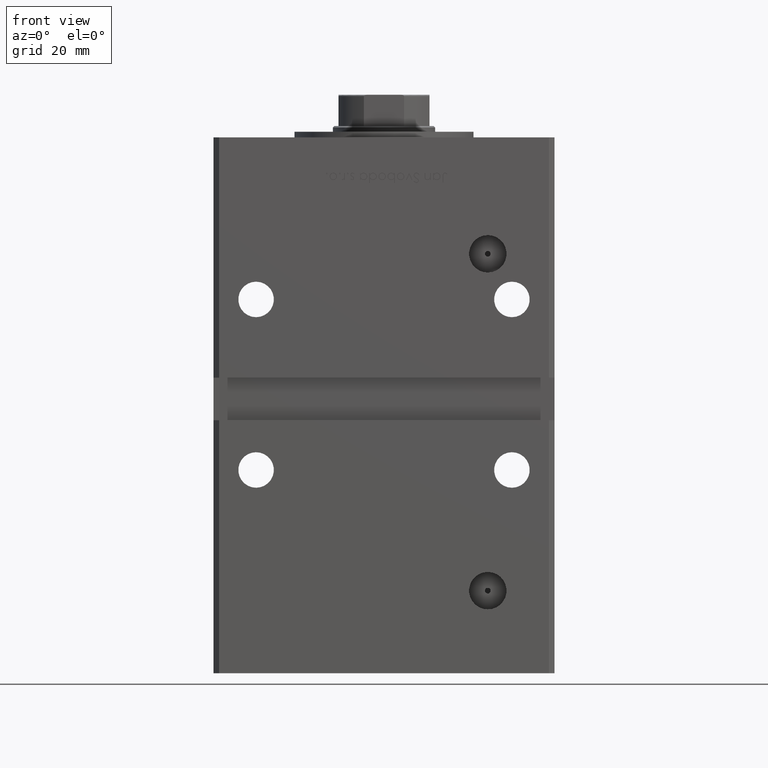
[diagram: clean part render]
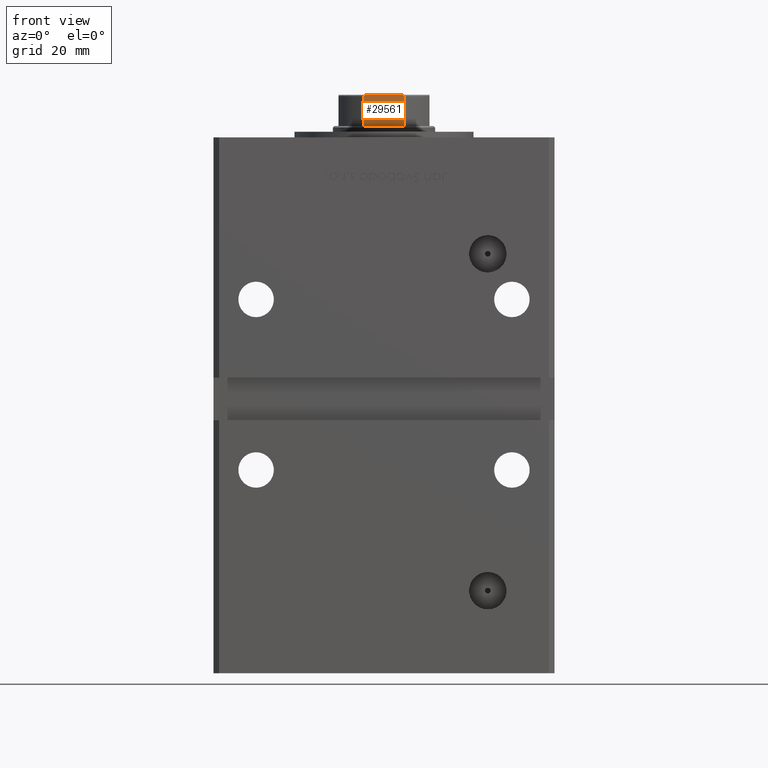
[diagram: same view with one face highlighted and labeled with its STEP entity id]
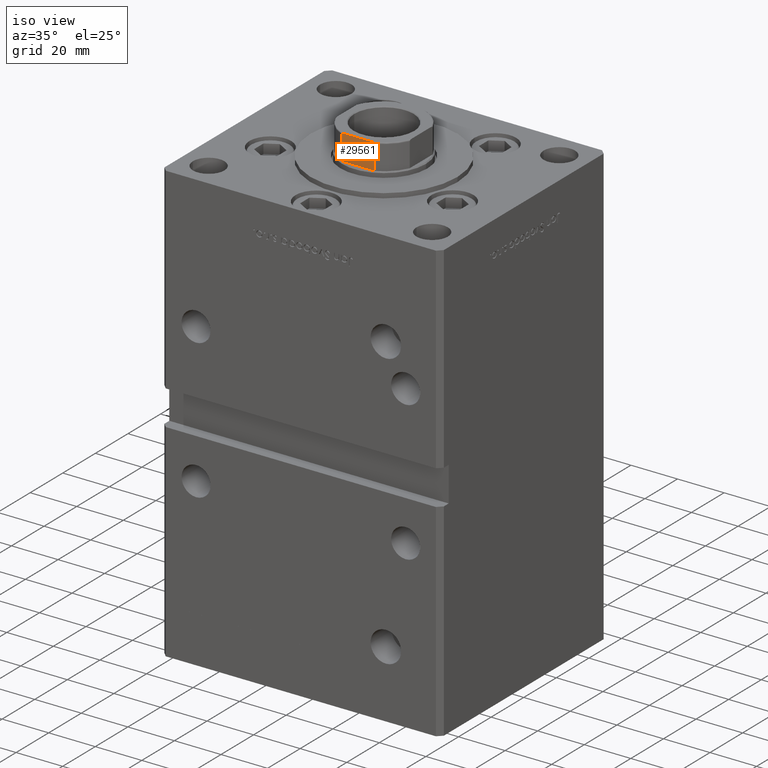
[diagram: same view with one face highlighted and labeled with its STEP entity id]
A machine part, front view. The second image highlights one B-rep face of the part: STEP entity #29561.
A second angle (iso view) of the same face is appended — the face is thin or edge-on in the first view.
In plain terms, the highlighted planar face has unit normal (-0, 1, 0).
Its self-contained STEP definition (entity closure, byte-faithful):
#1341 = B_SPLINE_CURVE_WITH_KNOTS ( 'NONE', 3,
 ( #15172, #10882, #32038, #35796, #27224, #19445, #31515, #11154, #35264, #47870 ),
 .UNSPECIFIED., .F., .F.,
 ( 4, 2, 2, 2, 4 ),
 ( 0.000000000000000000, 0.0001928955851489656066, 0.0003857911702979312132, 0.0007715823405958216604, 0.001543164681191583039 ),
 .UNSPECIFIED. ) ;
#2238 = CARTESIAN_POINT ( 'NONE',  ( -7.088723439378916247, -16.00000000000000000, 158.2500000000000284 ) ) ;
#3283 = CARTESIAN_POINT ( 'NONE',  ( -15.99999999999999645, -16.00000000000000355, 169.2500000000000000 ) ) ;
#4080 = DIRECTION ( 'NONE',  ( -1.084202172485504557E-16, 1.000000000000000000, 0.000000000000000000 ) ) ;
#5608 = CARTESIAN_POINT ( 'NONE',  ( -7.088723439378916247, -16.00000000000000000, 168.7500000000000000 ) ) ;
#7127 = CARTESIAN_POINT ( 'NONE',  ( 7.088723439378916247, -16.00000000000000000, 168.7500000000000000 ) ) ;
#8806 = DIRECTION ( 'NONE',  ( 1.000000000000000000, 1.084202172485504434E-16, 0.000000000000000000 ) ) ;
#9757 = CARTESIAN_POINT ( 'NONE',  ( 7.088723439378916247, -16.00000000000000000, -0.001000000000001000089 ) ) ;
#10184 = EDGE_CURVE ( 'NONE', #50161, #20619, #30895, .T. ) ;
#10443 = ORIENTED_EDGE ( 'NONE', *, *, #36633, .F. ) ;
#10525 = DIRECTION ( 'NONE',  ( -0.000000000000000000, -0.000000000000000000, 1.000000000000000000 ) ) ;
#10664 = ORIENTED_EDGE ( 'NONE', *, *, #35216, .T. ) ;
#10882 = CARTESIAN_POINT ( 'NONE',  ( 7.088723439378916247, -16.00000000000000000, 168.8153596029795551 ) ) ;
#11154 = CARTESIAN_POINT ( 'NONE',  ( 6.252433022027807930, -16.00000000000000000, 169.2306157152108312 ) ) ;
#11208 = CARTESIAN_POINT ( 'NONE',  ( -7.088723439378916247, -16.00000000000000000, 168.7500000000000000 ) ) ;
#12003 = CARTESIAN_POINT ( 'NONE',  ( -7.055793701721071010, -16.00000000000000000, 168.8756279161197540 ) ) ;
#12266 = CARTESIAN_POINT ( 'NONE',  ( -6.251780714621276935, -16.00000000000000355, 169.2305079891187347 ) ) ;
#13828 = DIRECTION ( 'NONE',  ( 1.000000000000000000, 1.084202172485504434E-16, 0.000000000000000000 ) ) ;
#15172 = CARTESIAN_POINT ( 'NONE',  ( 7.088723439378916247, -16.00000000000000000, 168.7500000000000000 ) ) ;
#15947 = VERTEX_POINT ( 'NONE', #41210 ) ;
#16023 = CARTESIAN_POINT ( 'NONE',  ( -6.967626683430007795, -16.00000000000000355, 168.9712986014228591 ) ) ;
#16138 = PLANE ( 'NONE',  #37945 ) ;
#16290 = CARTESIAN_POINT ( 'NONE',  ( -7.088723439378911806, -16.00000000000000000, 168.8155697653146206 ) ) ;
#16294 = EDGE_CURVE ( 'NONE', #17472, #20837, #38699, .T. ) ;
#16346 = ORIENTED_EDGE ( 'NONE', *, *, #50677, .T. ) ;
#17472 = VERTEX_POINT ( 'NONE', #48861 ) ;
#19069 = EDGE_LOOP ( 'NONE', ( #10443, #35605, #50037, #10664, #37358, #16346 ) ) ;
#19445 = CARTESIAN_POINT ( 'NONE',  ( 6.746962372739930380, -16.00000000000000000, 169.1011068297690088 ) ) ;
#20619 = VERTEX_POINT ( 'NONE', #5608 ) ;
#20837 = VERTEX_POINT ( 'NONE', #7127 ) ;
#21985 = VECTOR ( 'NONE', #8806, 1000.000000000000000 ) ;
#22172 = LINE ( 'NONE', #42558, #21985 ) ;
#27224 = CARTESIAN_POINT ( 'NONE',  ( 6.914772706552264836, -16.00000000000000355, 169.0076711345670901 ) ) ;
#28074 = CARTESIAN_POINT ( 'NONE',  ( -5.744562646538029504, -16.00000000000000355, 169.2500000000000000 ) ) ;
#29561 = ADVANCED_FACE ( 'NONE', ( #44810 ), #16138, .F. ) ;
#30895 = LINE ( 'NONE', #47243, #41822 ) ;
#31515 = CARTESIAN_POINT ( 'NONE',  ( 6.623467753754345821, -15.99999999999999645, 169.1410978819201318 ) ) ;
#32038 = CARTESIAN_POINT ( 'NONE',  ( 7.055665994487714698, -16.00000000000000000, 168.8756422470904397 ) ) ;
#34437 = CARTESIAN_POINT ( 'NONE',  ( -15.99999999999999645, -16.00000000000000355, 158.2500000000000000 ) ) ;
#35216 = EDGE_CURVE ( 'NONE', #50161, #17472, #38212, .T. ) ;
#35264 = CARTESIAN_POINT ( 'NONE',  ( 5.999773414835120278, -15.99999999999999645, 169.2499999999999432 ) ) ;
#35605 = ORIENTED_EDGE ( 'NONE', *, *, #38995, .T. ) ;
#35796 = CARTESIAN_POINT ( 'NONE',  ( 6.968475375953126161, -16.00000000000000000, 168.9705009019615147 ) ) ;
#35849 = CARTESIAN_POINT ( 'NONE',  ( -6.744478600285193970, -16.00000000000000711, 169.1022542963853255 ) ) ;
#36383 = CARTESIAN_POINT ( 'NONE',  ( -5.999698100839998105, -16.00000000000000711, 169.2499999999999432 ) ) ;
#36633 = EDGE_CURVE ( 'NONE', #15947, #40893, #22172, .T. ) ;
#37358 = ORIENTED_EDGE ( 'NONE', *, *, #16294, .T. ) ;
#37687 = VECTOR ( 'NONE', #39227, 1000.000000000000000 ) ;
#37945 = AXIS2_PLACEMENT_3D ( 'NONE', #3283, #4080, #40793 ) ;
#38212 = LINE ( 'NONE', #34437, #45818 ) ;
#38699 = LINE ( 'NONE', #9757, #37687 ) ;
#38995 = EDGE_CURVE ( 'NONE', #15947, #20619, #42308, .T. ) ;
#39227 = DIRECTION ( 'NONE',  ( -0.000000000000000000, -0.000000000000000000, 1.000000000000000000 ) ) ;
#40793 = DIRECTION ( 'NONE',  ( -1.000000000000000000, -1.084202172485504557E-16, 0.000000000000000000 ) ) ;
#40893 = VERTEX_POINT ( 'NONE', #48806 ) ;
#41210 = CARTESIAN_POINT ( 'NONE',  ( -5.744562646538029504, -16.00000000000000355, 169.2500000000000000 ) ) ;
#41822 = VECTOR ( 'NONE', #10525, 1000.000000000000000 ) ;
#42308 = B_SPLINE_CURVE_WITH_KNOTS ( 'NONE', 3,
 ( #28074, #36383, #12266, #47920, #35849, #52730, #16023, #12003, #16290, #11208 ),
 .UNSPECIFIED., .F., .F.,
 ( 4, 2, 2, 2, 4 ),
 ( 0.000000000000000000, 0.0007561879621635831435, 0.001134281943245383280, 0.001323328933786264592, 0.001512375924327145904 ),
 .UNSPECIFIED. ) ;
#42558 = CARTESIAN_POINT ( 'NONE',  ( -15.99999999999999645, -16.00000000000000355, 169.2500000000000000 ) ) ;
#44810 = FACE_OUTER_BOUND ( 'NONE', #19069, .T. ) ;
#45818 = VECTOR ( 'NONE', #13828, 1000.000000000000000 ) ;
#47243 = CARTESIAN_POINT ( 'NONE',  ( -7.088723439378916247, -16.00000000000000000, -0.001000000000001000089 ) ) ;
#47870 = CARTESIAN_POINT ( 'NONE',  ( 5.744562646538024175, -16.00000000000000355, 169.2500000000000000 ) ) ;
#47920 = CARTESIAN_POINT ( 'NONE',  ( -6.620608993398003683, -16.00000000000000000, 169.1419184437072545 ) ) ;
#48806 = CARTESIAN_POINT ( 'NONE',  ( 5.744562646538024175, -16.00000000000000355, 169.2500000000000000 ) ) ;
#48861 = CARTESIAN_POINT ( 'NONE',  ( 7.088723439378916247, -16.00000000000000000, 158.2500000000000284 ) ) ;
#50037 = ORIENTED_EDGE ( 'NONE', *, *, #10184, .F. ) ;
#50161 = VERTEX_POINT ( 'NONE', #2238 ) ;
#50677 = EDGE_CURVE ( 'NONE', #20837, #40893, #1341, .T. ) ;
#52730 = CARTESIAN_POINT ( 'NONE',  ( -6.914158745692620123, -15.99999999999999645, 169.0081288012991081 ) ) ;